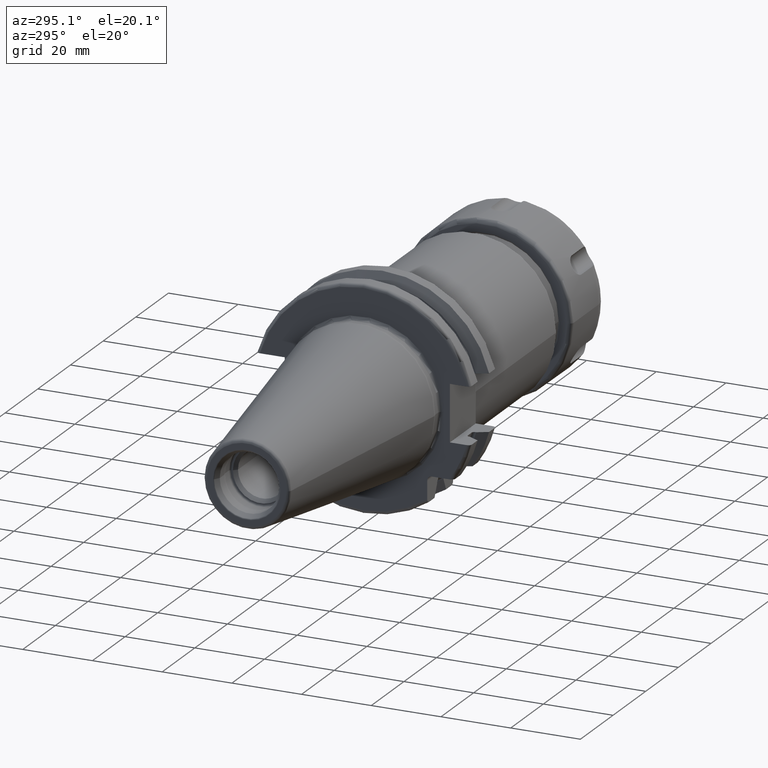
[diagram: clean part render]
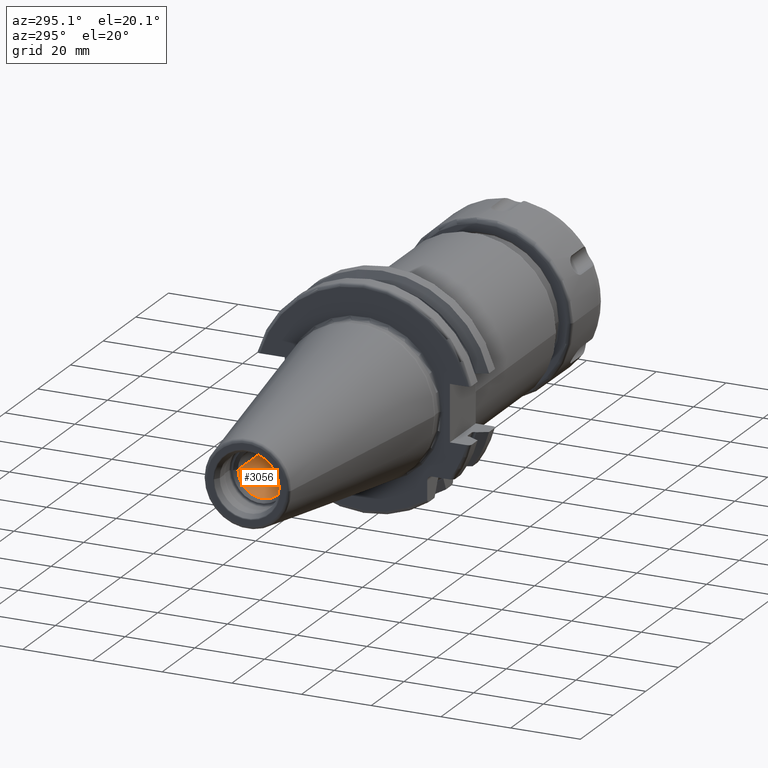
[diagram: same view with one face highlighted and labeled with its STEP entity id]
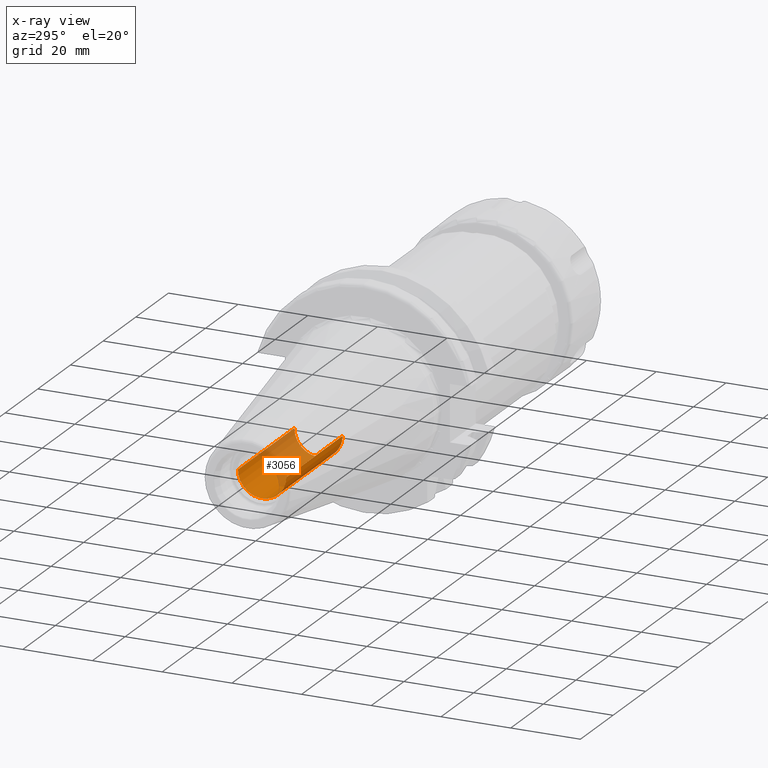
[diagram: x-ray of the same camera — body ghosted, the highlighted face saturated]
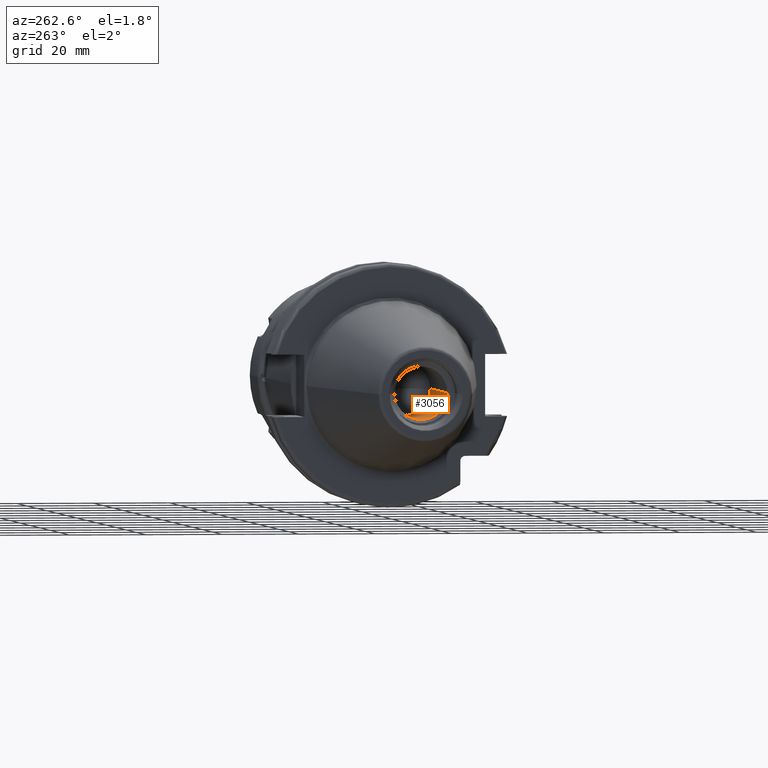
[diagram: same view with one face highlighted and labeled with its STEP entity id]
A machine part, auxiliary view. The second image highlights one B-rep face of the part: STEP entity #3056.
The next image is the same camera in x-ray: the body ghosted, the highlighted face saturated — about 43% of this face is hidden behind the body in this view.
A second angle (auxiliary view) of the same face is appended — the face is thin or edge-on in the first view.
In plain terms, the highlighted cylindrical surface (edge-blend (fillet) strip) has radius 6.92 mm, axis along (1, 0, 0).
Its self-contained STEP definition (entity closure, byte-faithful):
#1276=CARTESIAN_POINT('',(-5.88E1,0.E0,0.E0));
#1277=DIRECTION('',(-1.E0,0.E0,0.E0));
#1278=DIRECTION('',(0.E0,1.E0,0.E0));
#1279=AXIS2_PLACEMENT_3D('',#1276,#1277,#1278);
#1285=DIRECTION('',(-1.E0,0.E0,0.E0));
#1286=VECTOR('',#1285,3.455E1);
#1287=CARTESIAN_POINT('',(-2.425E1,6.92E0,0.E0));
#1288=LINE('',#1287,#1286);
#1289=CARTESIAN_POINT('',(-2.425E1,0.E0,0.E0));
#1290=DIRECTION('',(-1.E0,0.E0,0.E0));
#1291=DIRECTION('',(0.E0,1.E0,0.E0));
#1292=AXIS2_PLACEMENT_3D('',#1289,#1290,#1291);
#1294=DIRECTION('',(-1.E0,0.E0,0.E0));
#1295=VECTOR('',#1294,3.455E1);
#1296=CARTESIAN_POINT('',(-2.425E1,-6.92E0,0.E0));
#1297=LINE('',#1296,#1295);
#1330=CARTESIAN_POINT('',(-2.425E1,6.92E0,0.E0));
#1332=VERTEX_POINT('',#1330);
#1333=CARTESIAN_POINT('',(-5.88E1,6.92E0,0.E0));
#1334=VERTEX_POINT('',#1333);
#1353=CARTESIAN_POINT('',(-2.425E1,-6.92E0,0.E0));
#1354=VERTEX_POINT('',#1353);
#1355=CARTESIAN_POINT('',(-5.88E1,-6.92E0,0.E0));
#1356=VERTEX_POINT('',#1355);
#3042=CARTESIAN_POINT('',(-7.065789777418E1,0.E0,0.E0));
#3043=DIRECTION('',(1.E0,0.E0,0.E0));
#3044=DIRECTION('',(0.E0,-1.E0,0.E0));
#3045=AXIS2_PLACEMENT_3D('',#3042,#3043,#3044);
#3046=CYLINDRICAL_SURFACE('',#3045,6.92E0);
#3048=ORIENTED_EDGE('',*,*,#3047,.F.);
#3050=ORIENTED_EDGE('',*,*,#3049,.T.);
#3052=ORIENTED_EDGE('',*,*,#3051,.T.);
#3053=ORIENTED_EDGE('',*,*,#3035,.F.);
#3054=EDGE_LOOP('',(#3048,#3050,#3052,#3053));
#3055=FACE_OUTER_BOUND('',#3054,.F.);
#3056=ADVANCED_FACE('',(#3055),#3046,.F.);
#1280=CIRCLE('',#1279,6.92E0);
#1293=CIRCLE('',#1292,6.92E0);
#3035=EDGE_CURVE('',#1334,#1356,#1280,.T.);
#3047=EDGE_CURVE('',#1332,#1334,#1288,.T.);
#3049=EDGE_CURVE('',#1332,#1354,#1293,.T.);
#3051=EDGE_CURVE('',#1354,#1356,#1297,.T.);